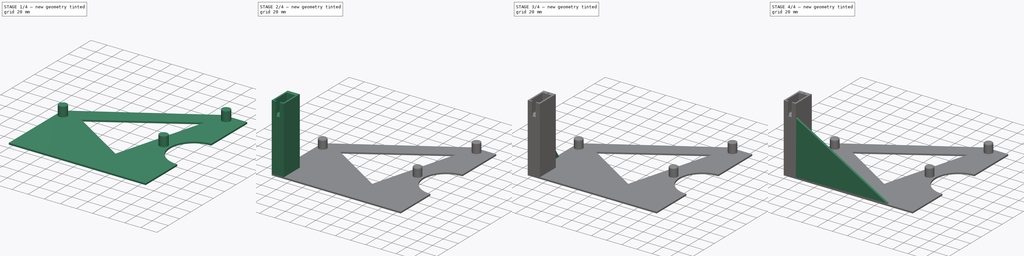
[diagram: build sequence overview — one tinted view per stage of 4, left to right]
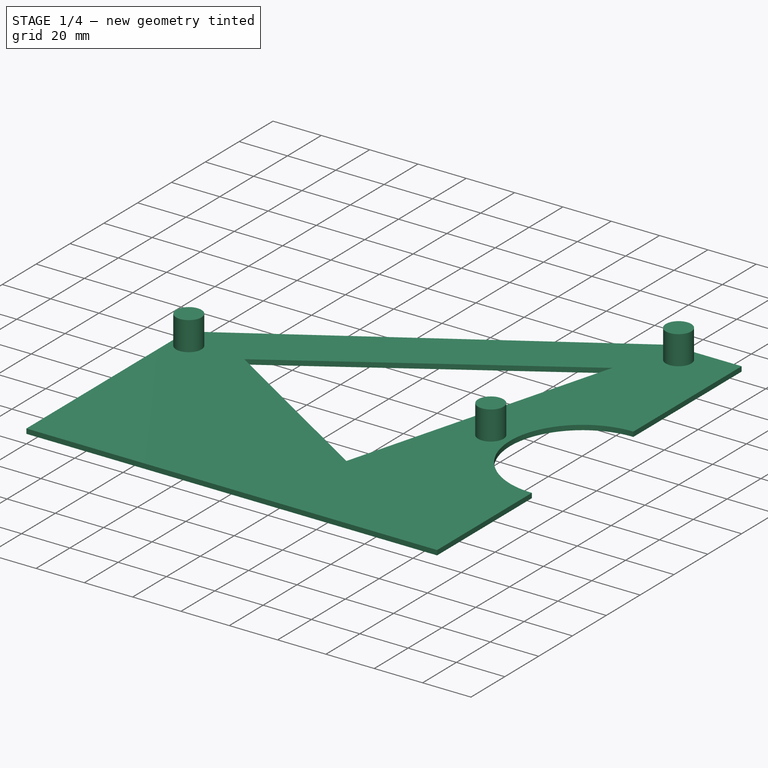
[diagram: stage 1 of 4 — iso view after this stage's code; geometry added in this stage tinted green]
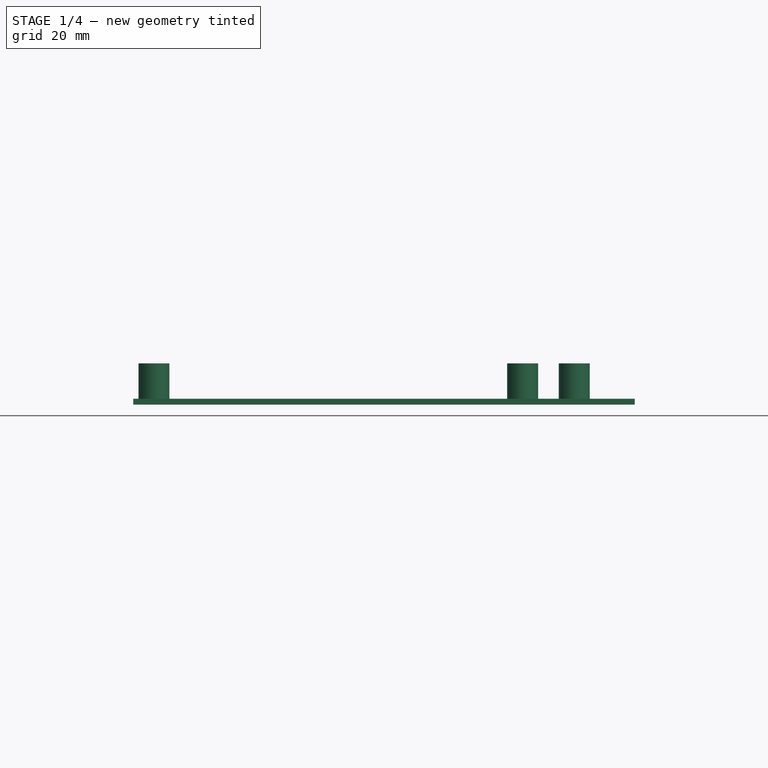
[diagram: stage 1 of 4 — front view after this stage's code; geometry added in this stage tinted green]
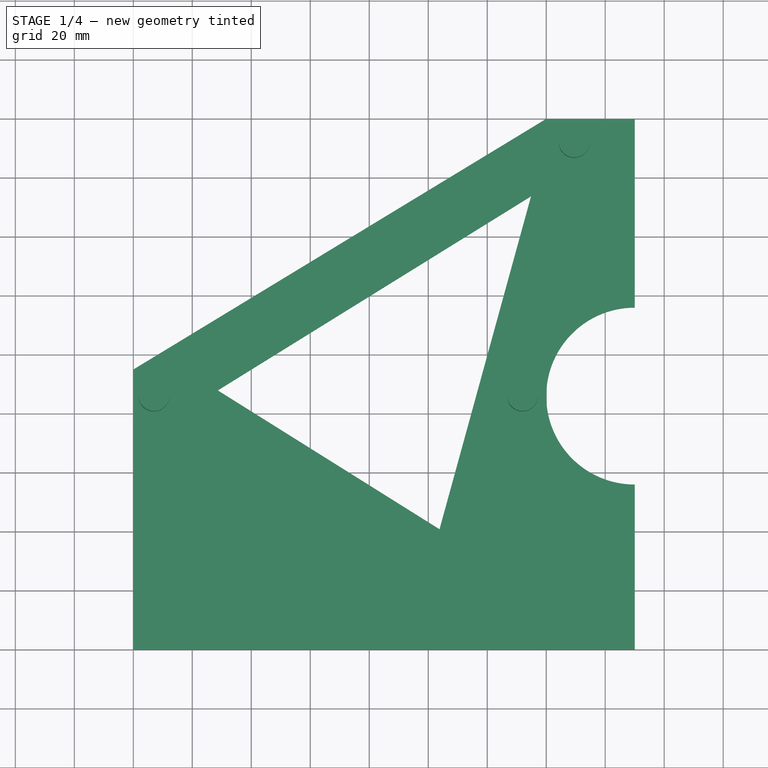
[diagram: stage 1 of 4 — top view after this stage's code; geometry added in this stage tinted green]
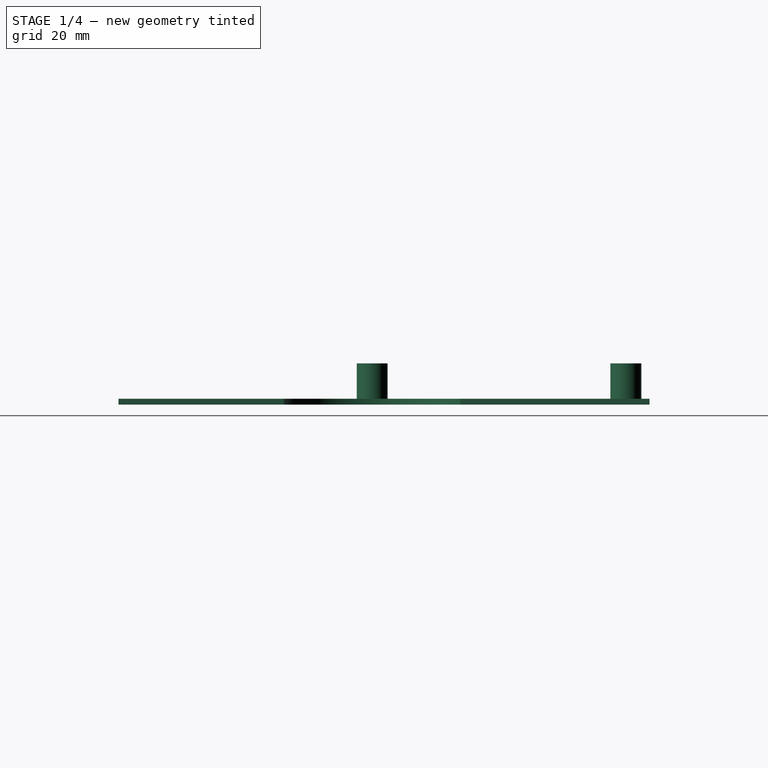
[diagram: stage 1 of 4 — right view after this stage's code; geometry added in this stage tinted green]
FCSTD DOCUMENT  (FreeCAD 0.21R33771 (Git))
Label: BasePlate
License: Creative Commons Attribution-NonCommercial 4.0
LicenseURL: https://creativecommons.org/licenses/by-nc/4.0/
objects: Sketcher::SketchObject×8, PartDesign::Pad×6, PartDesign::Pocket×2, PartDesign::Fillet×2, PartDesign::Chamfer×1, PartDesign::Body×1
note: 31 computed .brp shape members not serialized (recipe doc carries the construction recipe); baked Part::Feature solids carry a one-line shape summary decoded from their .brp

FEATURE [Sketcher::SketchObject] Sketch
  FullyConstrained = true
  MapMode = 5
  Support = -> [XY_Plane]
  sketch-geometry (5):
    g0: LineSegment StartX=0 StartY=0 StartZ=0 EndX=170 EndY=0 EndZ=0
    g1: LineSegment StartX=170 StartY=0 StartZ=0 EndX=170 EndY=180 EndZ=0
    g2: LineSegment StartX=170 StartY=180 StartZ=0 EndX=140 EndY=180 EndZ=0
    g3: LineSegment StartX=0 StartY=95 StartZ=0 EndX=0 EndY=0 EndZ=0
    g4: LineSegment StartX=0 StartY=95 StartZ=0 EndX=140 EndY=180 EndZ=0
  constraints (14):
    c: Coincident(g0,g1)
    c: Coincident(g1,g2)
    c: Coincident(g3,g0)
    c: Horizontal(g0)
    c: Vertical(g1)
    c: Coincident(g0,g-1)
    c: Horizontal(g2)
    c: Vertical(g3)
    c: DistanceX(g0,g0) = 170
    c: DistanceY(g1,g1) = 180
    c: DistanceX(g2,g2) = 30
    c: DistanceY(g3,g2) = 85
    c: Coincident(g4,g3)
    c: Coincident(g4,g2)
FEATURE [PartDesign::Pad] Pad
  Direction = (0,0,1)
  Length = 2
  Length2 = 10
  Profile = -> Sketch
  ReferenceAxis = -> Sketch [N_Axis]
  Reversed = true
  Type = 0
FEATURE [Sketcher::SketchObject] Sketch001
  ExternalGeometry = -> [Pad]
  FullyConstrained = true
  MapMode = 5
  Support = -> [XY_Plane]
  sketch-geometry (3):
    g0: Circle CenterX=7 CenterY=86 CenterZ=0 NormalX=0 NormalY=0 NormalZ=1 AngleXU=0 Radius=5.25
    g1: Circle CenterX=132 CenterY=86 CenterZ=0 NormalX=0 NormalY=0 NormalZ=1 AngleXU=0 Radius=5.25
    g2: Circle CenterX=149.5 CenterY=172 CenterZ=0 NormalX=0 NormalY=0 NormalZ=1 AngleXU=0 Radius=5.25
  constraints (9):
    c: Equal(g2,g0)
    c: Equal(g2,g1)
    c: Diameter(g2) = 10.5
    c: DistanceX(g0,g1) = 125
    c: Horizontal(g0,g1)
    c: DistanceX(g1,g2) = 17.5
    c: DistanceX(g-1,g0) = 7
    c: DistanceY(g2,g-3) = 8
    c: DistanceY(g1,g2) = 86
FEATURE [PartDesign::Pad] Pad001
  BaseFeature = -> Pad
  Direction = (0,0,1)
  Length = 12
  Length2 = 10
  Profile = -> Sketch001
  ReferenceAxis = -> Sketch001 [N_Axis]
  Type = 0
FEATURE [Sketcher::SketchObject] Sketch002
  ExternalGeometry = -> [Sketch001,Sketch]
  FullyConstrained = false
  MapMode = 5
  Support = -> [XY_Plane]
  sketch-geometry (5):
    g0: ArcOfCircle CenterX=170 CenterY=86 CenterZ=0 NormalX=0 NormalY=0 NormalZ=1 AngleXU=0 Radius=30 StartAngle=1.5708 EndAngle=4.71239
    g1: LineSegment StartX=170 StartY=116 StartZ=0 EndX=170 EndY=56 EndZ=0
    g2: LineSegment StartX=28.6436 StartY=87.9291 StartZ=0 EndX=134.855 EndY=153.743 EndZ=0
    g3: LineSegment StartX=134.855 StartY=153.743 StartZ=0 EndX=103.821 EndY=40.8428 EndZ=0
    g4: LineSegment StartX=103.821 StartY=40.8428 StartZ=0 EndX=28.6436 EndY=87.9291 EndZ=0
  constraints (10):
    c: Horizontal(g-3,g0)
    c: PointOnObject(g0,g-4)
    c: Vertical(g0,g0)
    c: Vertical(g0,g0)
    c: DistanceY(g0,g0) = 60
    c: Coincident(g1,g0)
    c: Coincident(g1,g0)
    c: Coincident(g2,g3)
    c: Coincident(g3,g4)
    c: Coincident(g4,g2)
FEATURE [PartDesign::Pocket] Pocket
  BaseFeature = -> Pad001
  Direction = (0,0,-1)
  Length = 5
  Length2 = 5
  Profile = -> Sketch002
  ReferenceAxis = -> Sketch002 [N_Axis]
  Type = 0
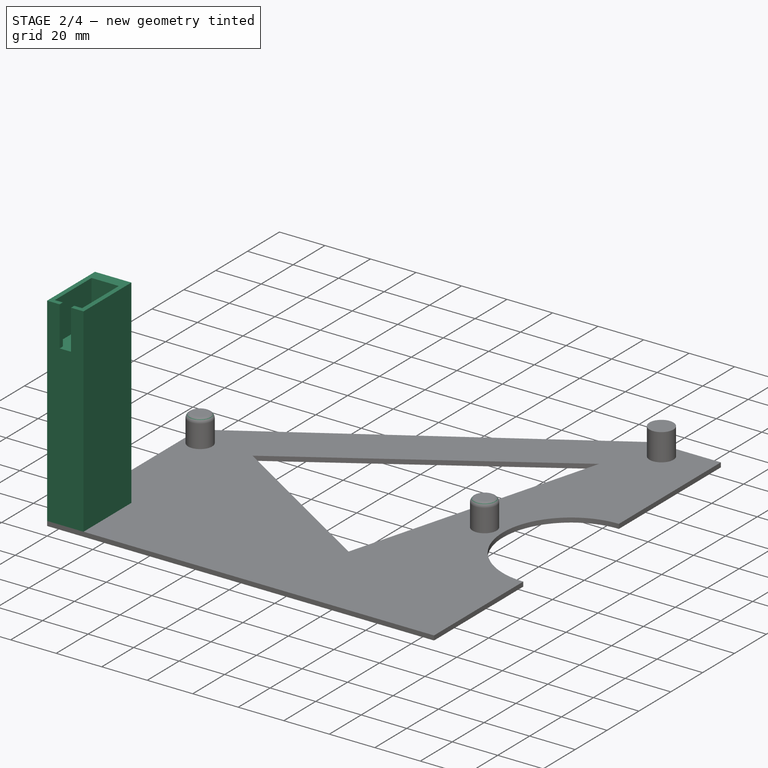
[diagram: stage 2 of 4 — iso view after this stage's code; geometry added in this stage tinted green]
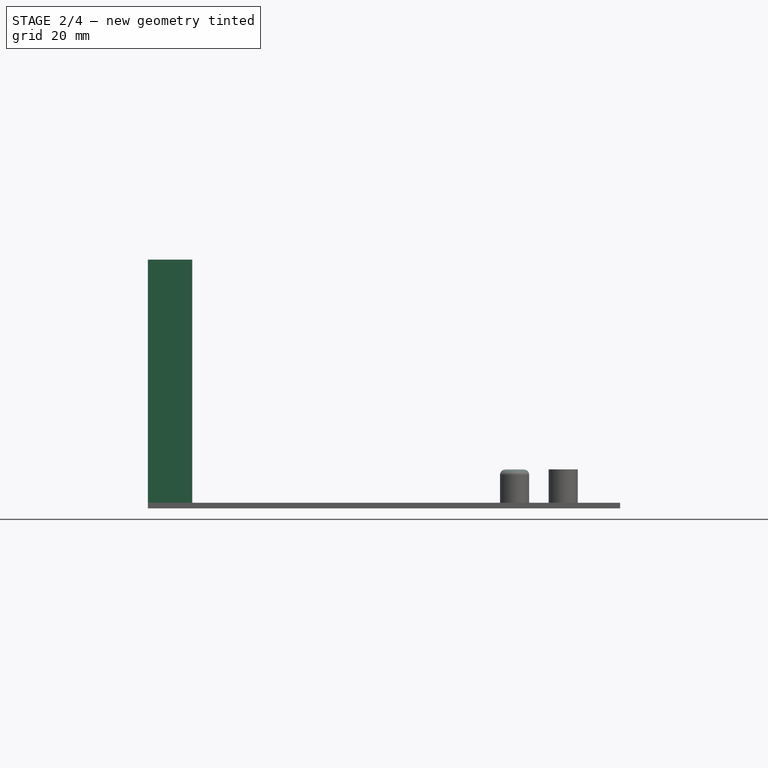
[diagram: stage 2 of 4 — front view after this stage's code; geometry added in this stage tinted green]
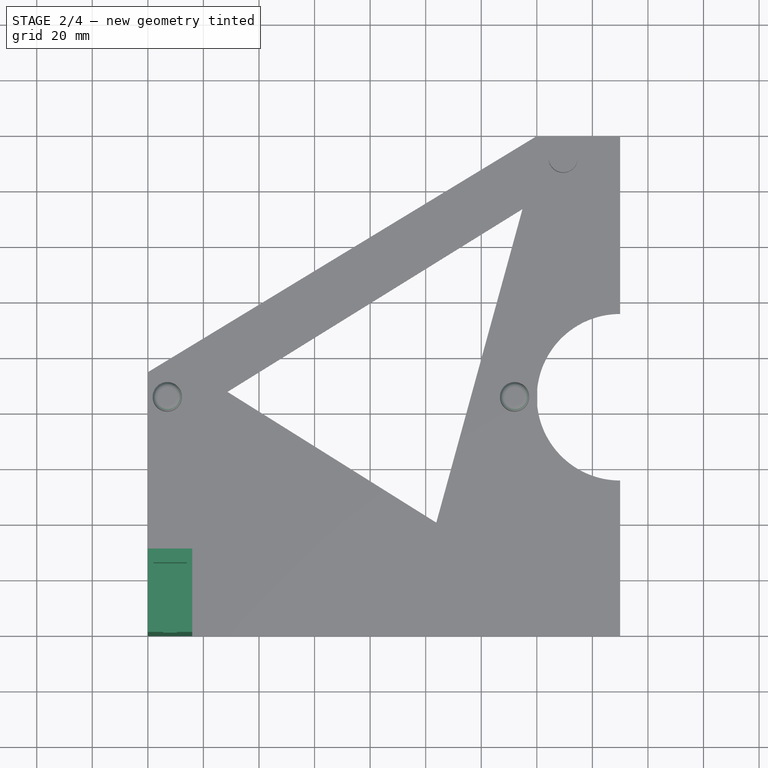
[diagram: stage 2 of 4 — top view after this stage's code; geometry added in this stage tinted green]
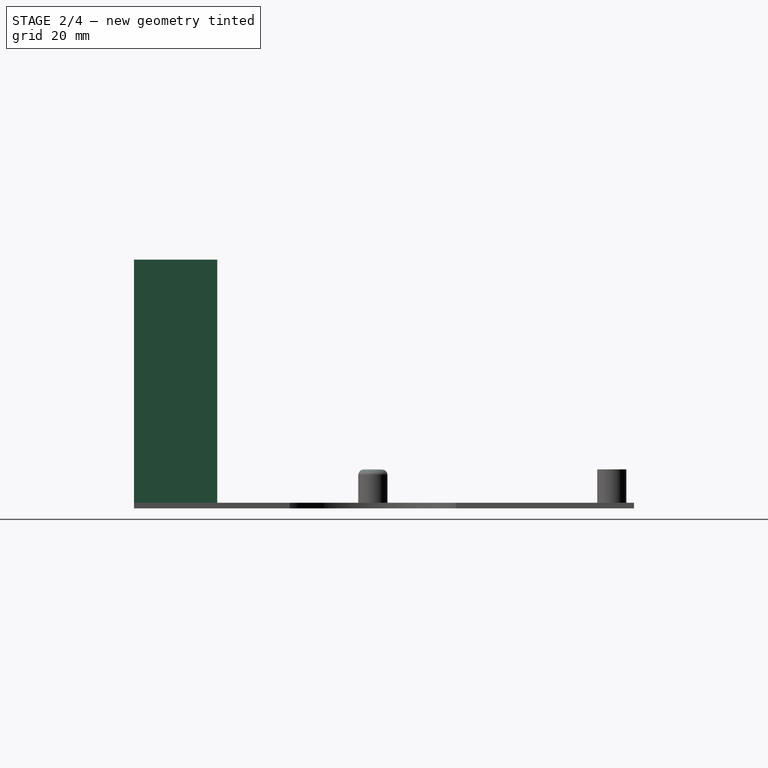
[diagram: stage 2 of 4 — right view after this stage's code; geometry added in this stage tinted green]
FEATURE [PartDesign::Fillet] Fillet
  Base = -> Pocket [Face16,Face16,Face17]
  BaseFeature = -> Pocket
  Radius = 2
  SupportTransform = false
  UseAllEdges = false
FEATURE [Sketcher::SketchObject] Sketch003
  AttachmentOffset = pos=(0,0,70) rot=(0,0,1;0rad)
  FullyConstrained = true
  MapMode = 5
  Placement = pos=(0,0,70) rot=(0,0,1;0rad)
  Support = -> [XY_Plane]
  sketch-geometry (12):
    g0: LineSegment StartX=16 StartY=0 StartZ=0 EndX=16 EndY=30 EndZ=0
    g1: LineSegment StartX=16 StartY=30 StartZ=0 EndX=0 EndY=30 EndZ=0
    g2: LineSegment StartX=0 StartY=30 StartZ=0 EndX=0 EndY=0 EndZ=0
    g3: LineSegment StartX=0 StartY=0 StartZ=0 EndX=5.5 EndY=0 EndZ=0
    g4: LineSegment StartX=5.5 StartY=0 StartZ=0 EndX=5.5 EndY=2 EndZ=0
    g5: LineSegment StartX=5.5 StartY=2 StartZ=0 EndX=2 EndY=2 EndZ=0
    g6: LineSegment StartX=2 StartY=2 StartZ=0 EndX=2 EndY=25 EndZ=0
    g7: LineSegment StartX=2 StartY=25 StartZ=0 EndX=14 EndY=25 EndZ=0
    g8: LineSegment StartX=14 StartY=25 StartZ=0 EndX=14 EndY=2 EndZ=0
    g9: LineSegment StartX=14 StartY=2 StartZ=0 EndX=10.5 EndY=2 EndZ=0
    g10: LineSegment StartX=10.5 StartY=2 StartZ=0 EndX=10.5 EndY=0 EndZ=0
    g11: LineSegment StartX=10.5 StartY=0 StartZ=0 EndX=16 EndY=0 EndZ=0
  constraints (35):
    c: Coincident(g0,g1)
    c: Coincident(g1,g2)
    c: Horizontal(g1)
    c: Vertical(g0)
    c: Vertical(g2)
    c: DistanceX(g2,g0) = 16
    c: Coincident(g2,g3)
    c: PointOnObject(g3,g-1)
    c: Coincident(g3,g4)
    c: Vertical(g4)
    c: Coincident(g4,g5)
    c: Coincident(g5,g6)
    c: Vertical(g6)
    c: Coincident(g6,g7)
    c: Horizontal(g7)
    c: Coincident(g7,g8)
    c: Vertical(g8)
    c: Coincident(g8,g9)
    c: Coincident(g9,g10)
    c: PointOnObject(g10,g-1)
    c: Coincident(g10,g11)
    c: Coincident(g11,g0)
    c: Horizontal(g11)
    c: Horizontal(g5)
    c: Horizontal(g9)
    c: DistanceY(g6,g6) = 23
    c: DistanceX(g7,g7) = 12
    c: DistanceX(g1,g6) = 2
    c: DistanceX(g3,g10) = 5
    c: Equal(g3,g11)
    c: Vertical(g10)
    c: Horizontal(g4,g9)
    c: DistanceY(g-1,g5) = 2
    c: Coincident(g2,g-1)
    c: DistanceY(g6,g1) = 5
FEATURE [Sketcher::SketchObject] Sketch004
  FullyConstrained = true
  MapMode = 5
  Support = -> [XY_Plane]
  sketch-geometry (4):
    g0: LineSegment StartX=0 StartY=0 StartZ=0 EndX=16 EndY=0 EndZ=0
    g1: LineSegment StartX=16 StartY=0 StartZ=0 EndX=16 EndY=30 EndZ=0
    g2: LineSegment StartX=16 StartY=30 StartZ=0 EndX=0 EndY=30 EndZ=0
    g3: LineSegment StartX=0 StartY=30 StartZ=0 EndX=0 EndY=0 EndZ=0
  constraints (11):
    c: Coincident(g0,g1)
    c: Coincident(g1,g2)
    c: Coincident(g2,g3)
    c: Coincident(g3,g0)
    c: Horizontal(g0)
    c: Horizontal(g2)
    c: Vertical(g1)
    c: Vertical(g3)
    c: Coincident(g0,g-1)
    c: DistanceX(g2,g2) = 16
    c: DistanceY(g3,g3) = 30
FEATURE [PartDesign::Pad] Pad002
  BaseFeature = -> Fillet
  Direction = (0,0,1)
  Length = 70
  Length2 = 10
  Profile = -> Sketch004
  ReferenceAxis = -> Sketch004 [N_Axis]
  Type = 0
FEATURE [PartDesign::Pad] Pad003
  BaseFeature = -> Pad002
  Direction = (0,0,1)
  Length = 17.5
  Length2 = 10
  Profile = -> Sketch003
  ReferenceAxis = -> Sketch003 [N_Axis]
  Type = 0
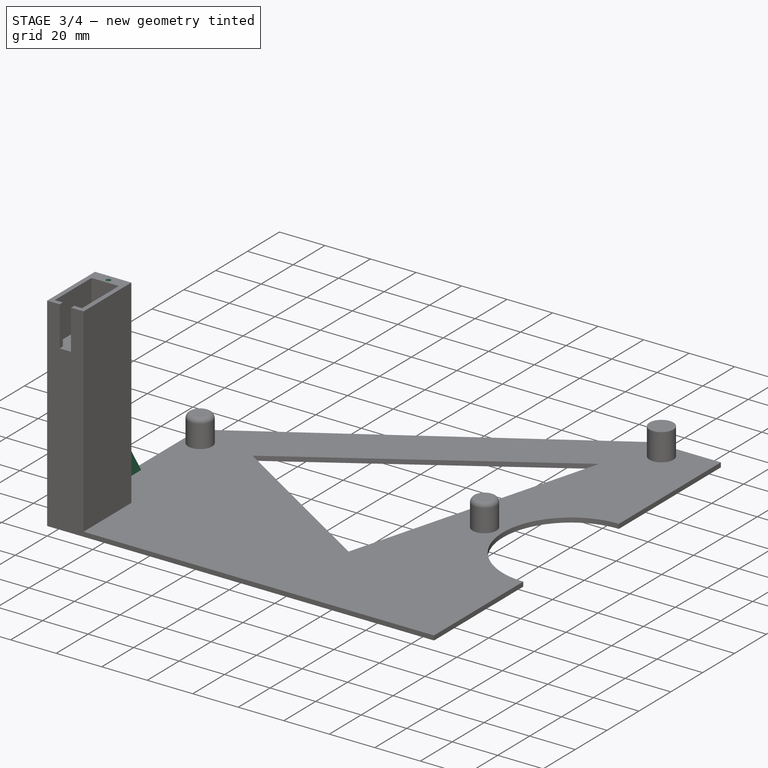
[diagram: stage 3 of 4 — iso view after this stage's code; geometry added in this stage tinted green]
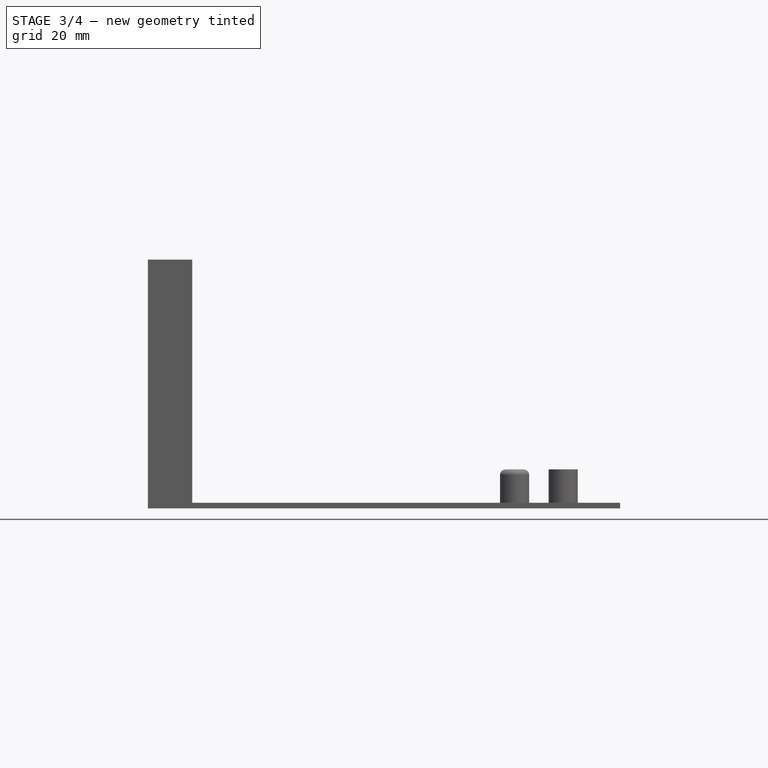
[diagram: stage 3 of 4 — front view after this stage's code; geometry added in this stage tinted green]
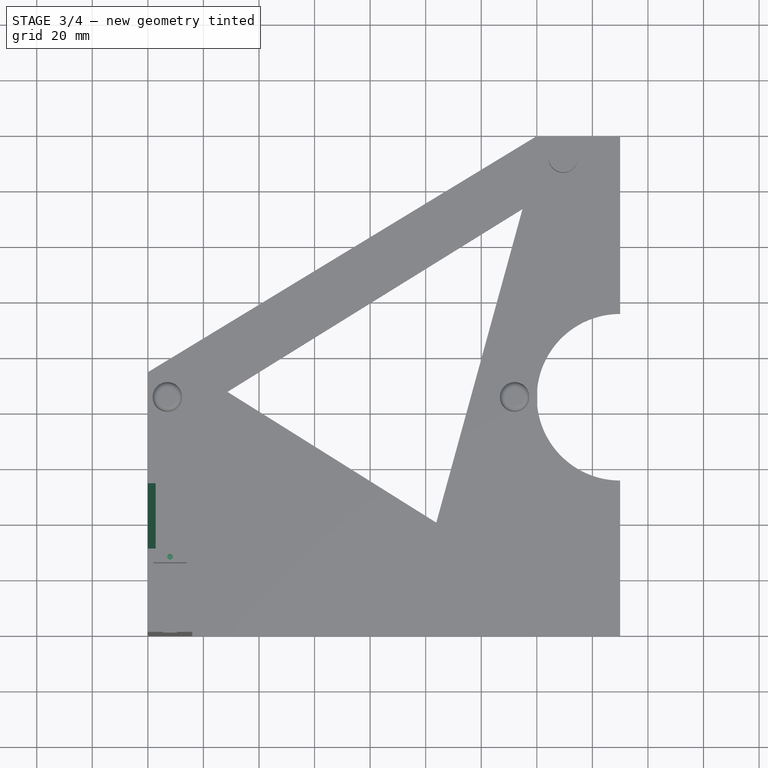
[diagram: stage 3 of 4 — top view after this stage's code; geometry added in this stage tinted green]
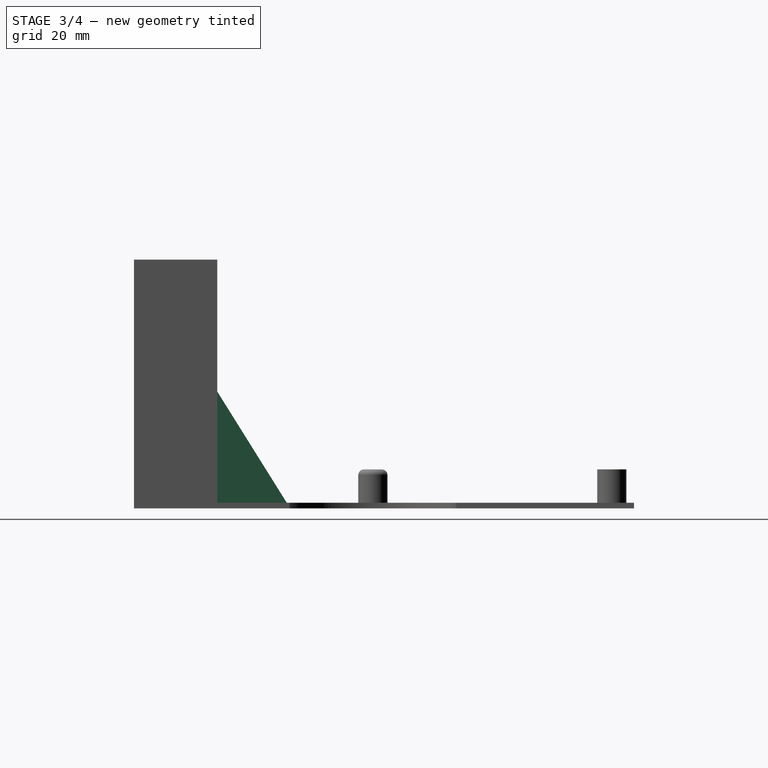
[diagram: stage 3 of 4 — right view after this stage's code; geometry added in this stage tinted green]
FEATURE [Sketcher::SketchObject] Sketch005
  FullyConstrained = true
  MapMode = 5
  Placement = pos=(0,0,87.5) rot=(0,0,1;0rad)
  Support = -> [Pad003]
  sketch-geometry (1):
    g0: Circle CenterX=8 CenterY=27 CenterZ=0 NormalX=0 NormalY=0 NormalZ=1 AngleXU=0 Radius=1
  constraints (3):
    c: Diameter(g0) = 2
    c: DistanceX(g-1,g0) = 8
    c: DistanceY(g-1,g0) = 27
FEATURE [PartDesign::Pocket] Pocket001
  BaseFeature = -> Pad003
  Direction = (0,0,-1)
  Length = 7
  Length2 = 5
  Profile = -> Sketch005
  ReferenceAxis = -> Sketch005 [N_Axis]
  Type = 0
FEATURE [Sketcher::SketchObject] Sketch007
  ExternalGeometry = -> [Pocket001]
  FullyConstrained = true
  MapMode = 5
  Placement = pos=(0,0,0) rot=(0.57735,0.57735,0.57735;2.0944rad)
  Support = -> [YZ_Plane]
  sketch-geometry (3):
    g0: LineSegment StartX=30 StartY=40 StartZ=0 EndX=30 EndY=7.1e-15 EndZ=0
    g1: LineSegment StartX=30 StartY=7.1e-15 StartZ=0 EndX=55 EndY=7.1e-15 EndZ=0
    g2: LineSegment StartX=55 StartY=7.1e-15 StartZ=0 EndX=30 EndY=40 EndZ=0
  constraints (8):
    c: Vertical(g0)
    c: Coincident(g0,g1)
    c: Horizontal(g1)
    c: Coincident(g1,g2)
    c: Coincident(g2,g0)
    c: Coincident(g0,g-3)
    c: DistanceX(g1,g1) = 25
    c: DistanceY(g0,g0) = 40
FEATURE [PartDesign::Pad] Pad004
  BaseFeature = -> Pocket001
  Direction = (1,-2e-16,3e-16)
  Length = 2.8
  Length2 = 10
  Profile = -> Sketch007
  ReferenceAxis = -> Sketch007 [N_Axis]
  Type = 0
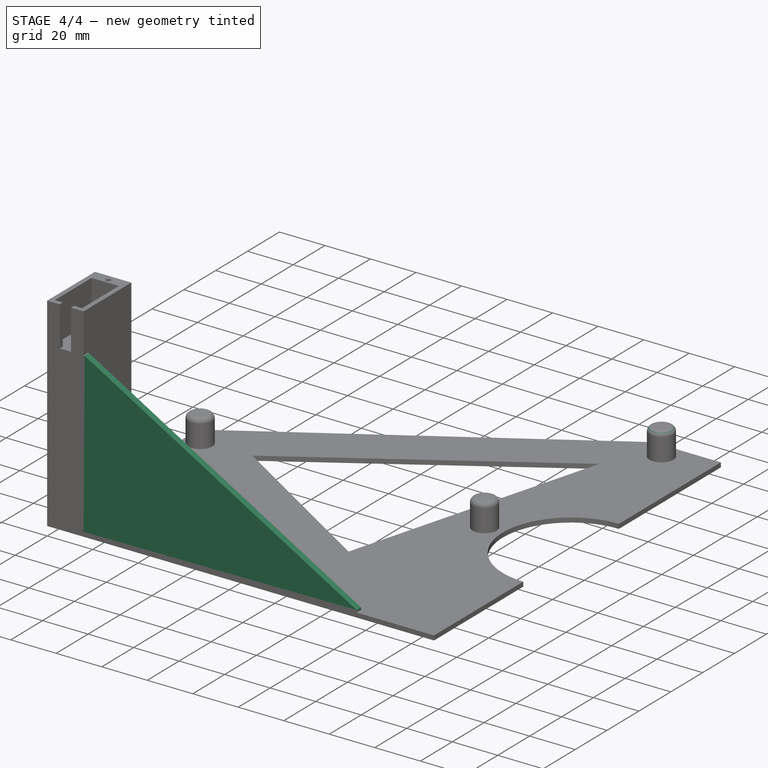
[diagram: stage 4 of 4 — iso view after this stage's code; geometry added in this stage tinted green]
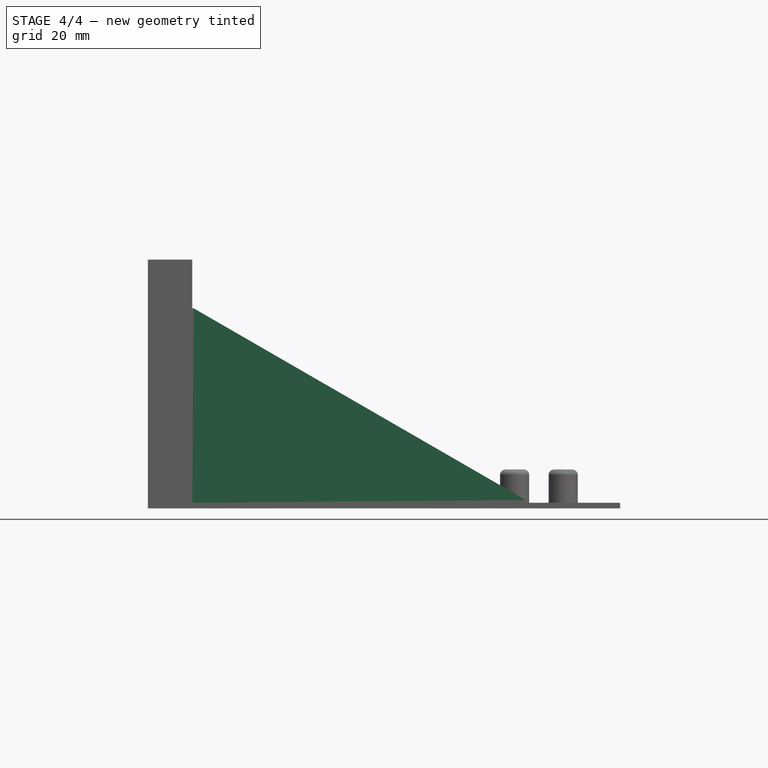
[diagram: stage 4 of 4 — front view after this stage's code; geometry added in this stage tinted green]
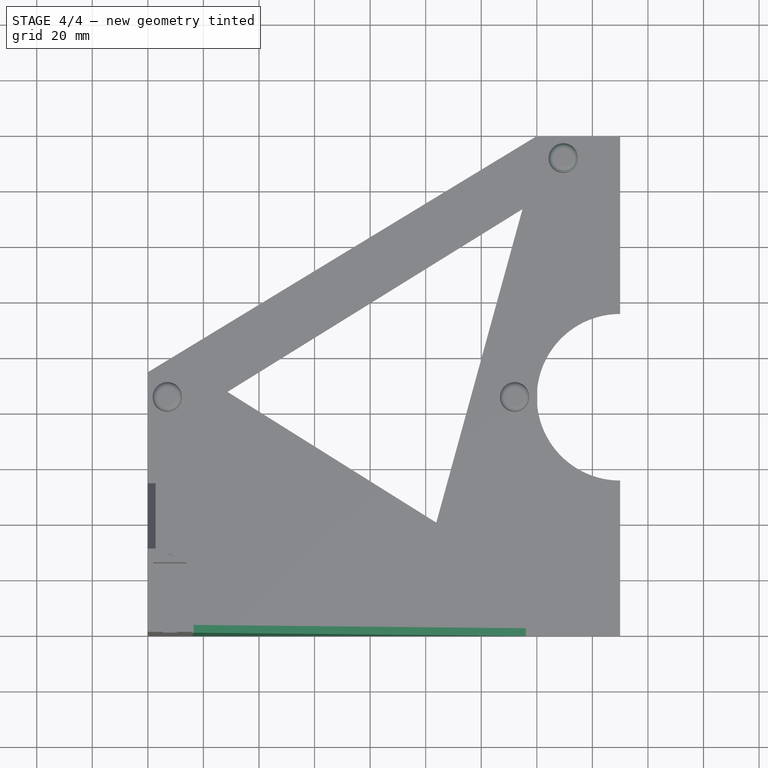
[diagram: stage 4 of 4 — top view after this stage's code; geometry added in this stage tinted green]
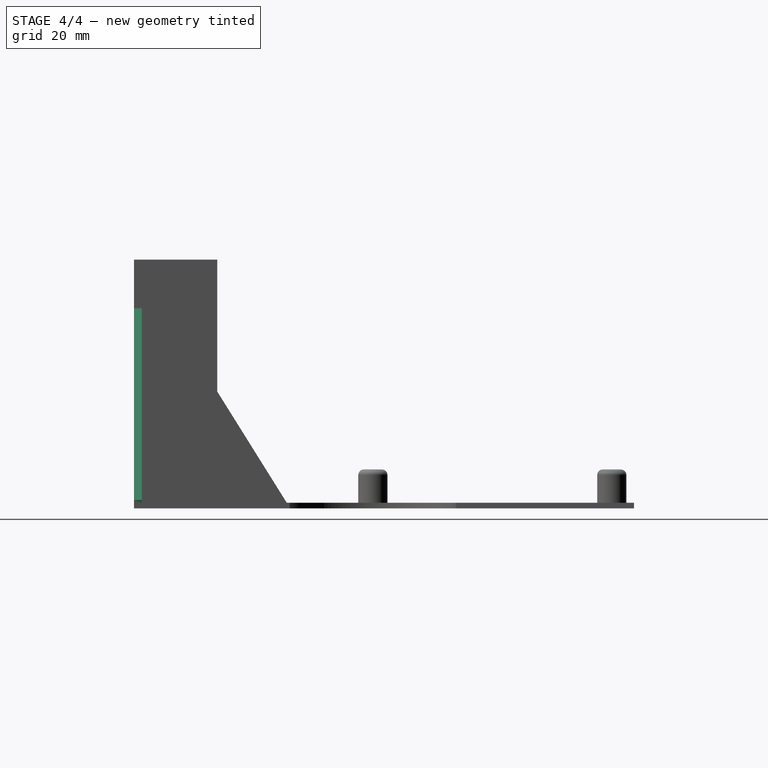
[diagram: stage 4 of 4 — right view after this stage's code; geometry added in this stage tinted green]
FEATURE [Sketcher::SketchObject] Sketch008
  ExternalGeometry = -> [Pad004]
  FullyConstrained = true
  MapMode = 5
  Support = -> [Pad004]
  sketch-geometry (4):
    g0: LineSegment StartX=16 StartY=0 StartZ=0 EndX=136 EndY=0 EndZ=0
    g1: LineSegment StartX=136 StartY=0 StartZ=0 EndX=136 EndY=2.8 EndZ=0
    g2: LineSegment StartX=136 StartY=2.8 StartZ=0 EndX=16 EndY=2.8 EndZ=0
    g3: LineSegment StartX=16 StartY=2.8 StartZ=0 EndX=16 EndY=0 EndZ=0
  constraints (11):
    c: Coincident(g0,g1)
    c: Coincident(g1,g2)
    c: Coincident(g2,g3)
    c: Coincident(g3,g0)
    c: Horizontal(g0)
    c: Horizontal(g2)
    c: Vertical(g1)
    c: Vertical(g3)
    c: Coincident(g0,g-3)
    c: DistanceY(g1,g1) = 2.8
    c: DistanceX(g0,g0) = 120
FEATURE [PartDesign::Pad] Pad005
  BaseFeature = -> Pad004
  Direction = (0,0,1)
  Length = 70
  Length2 = 10
  Profile = -> Sketch008
  ReferenceAxis = -> Sketch008 [N_Axis]
  Type = 0
FEATURE [PartDesign::Chamfer] Chamfer
  Angle = 60
  Base = -> Pad005 [Edge41]
  BaseFeature = -> Pad005
  ChamferType = 2
  FlipDirection = false
  Size = 69
  Size2 = 1
  SupportTransform = false
  UseAllEdges = false
FEATURE [PartDesign::Fillet] Fillet001
  Base = -> Chamfer [Edge72]
  BaseFeature = -> Chamfer
  Radius = 2
  SupportTransform = false
  UseAllEdges = false
FEATURE [PartDesign::Body] Body
  Group = -> [Sketch,Pad,Sketch001,Pad001,Sketch002,Pocket,Fillet,Sketch003,Sketch004,Pad002,Pad003,Sketch005,Pocket001,Sketch007,Pad004,Sketch008,Pad005,Chamfer,Fillet001]
  Origin = -> Origin
  Tip = -> Fillet001
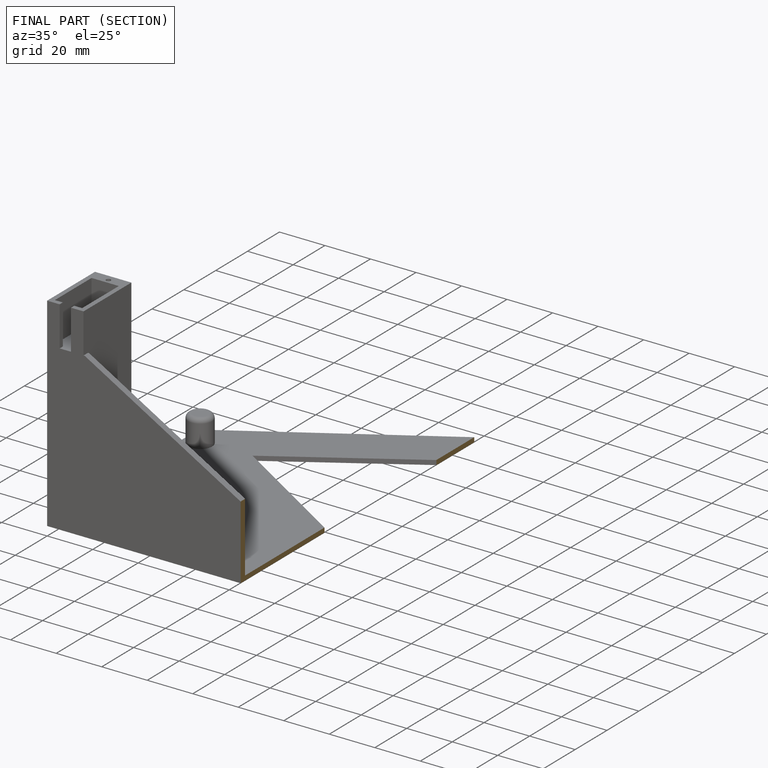
[diagram: finished part — half-section view (interior)]
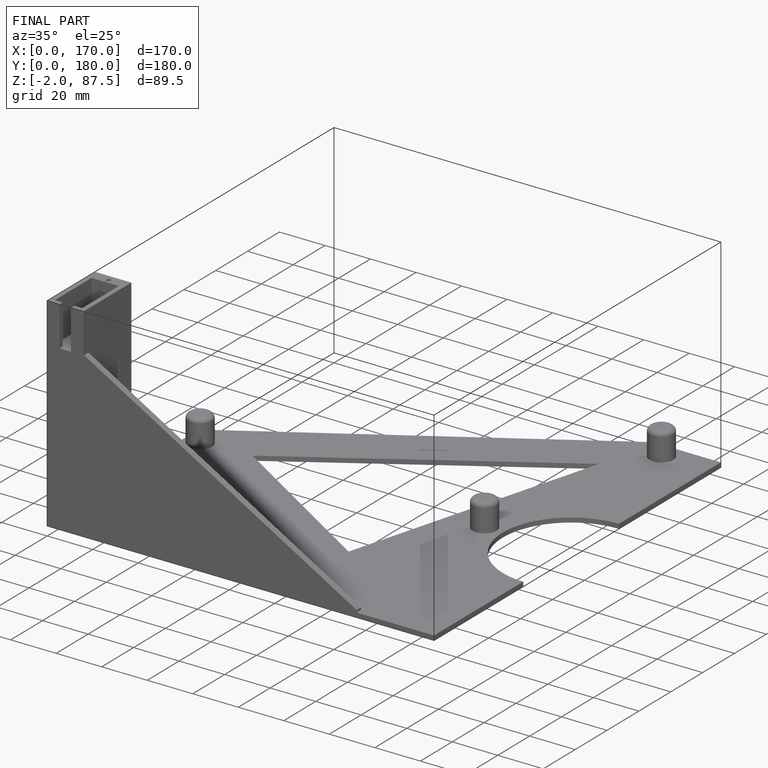
[diagram: finished part — iso view with bounding-box wireframe]
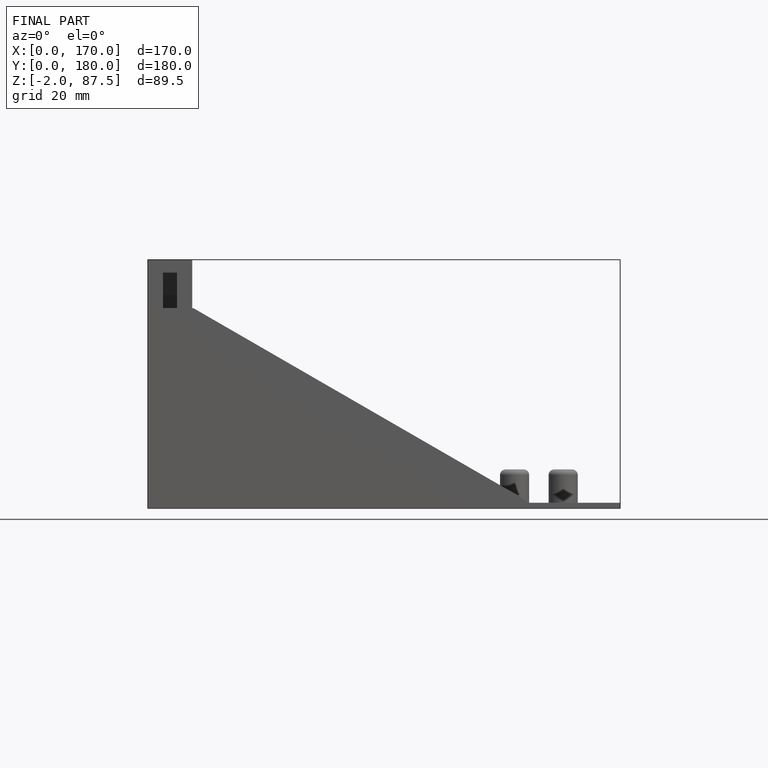
[diagram: finished part — front view with bounding-box wireframe]
